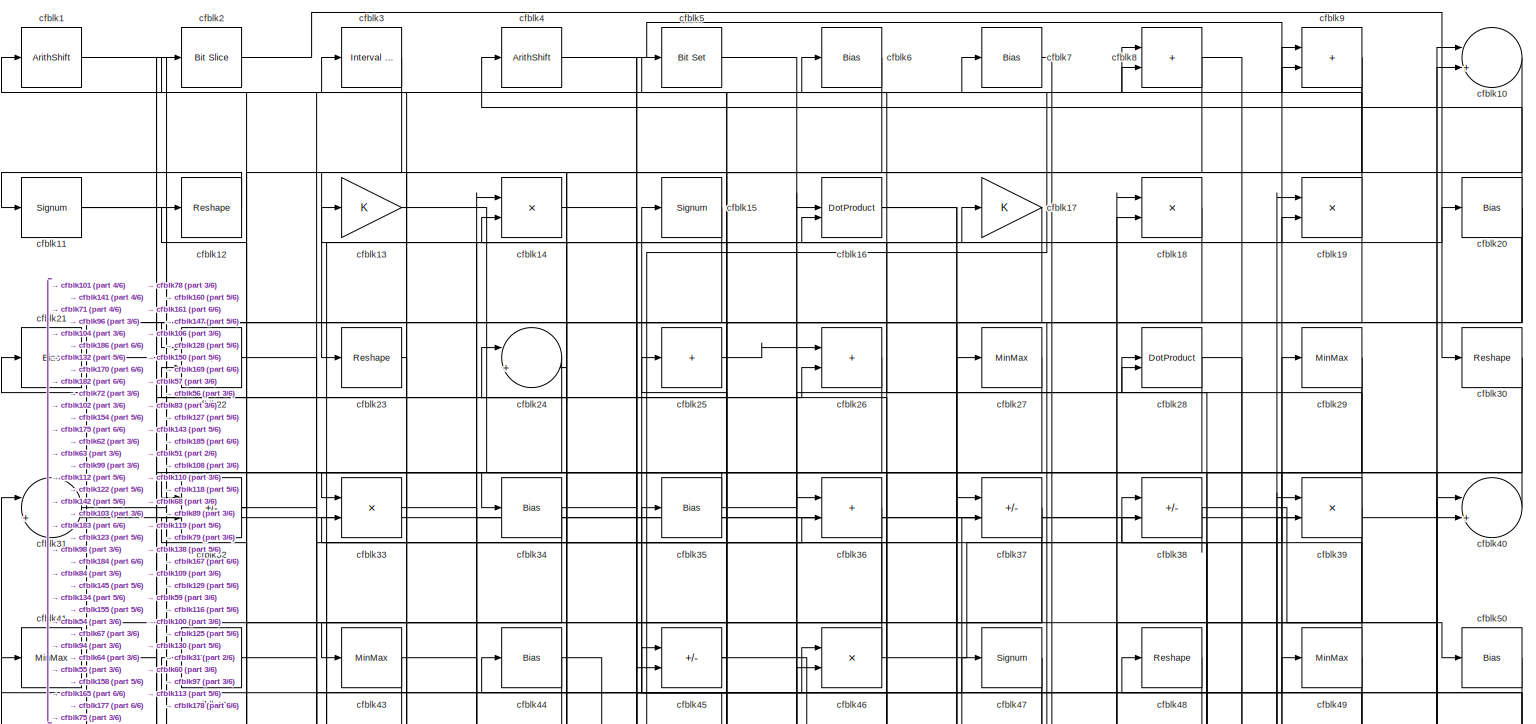
[diagram: root canvas - part 1/6, full width, top band]
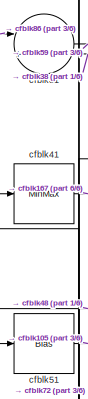
[diagram: root canvas - part 2/6, top left region]
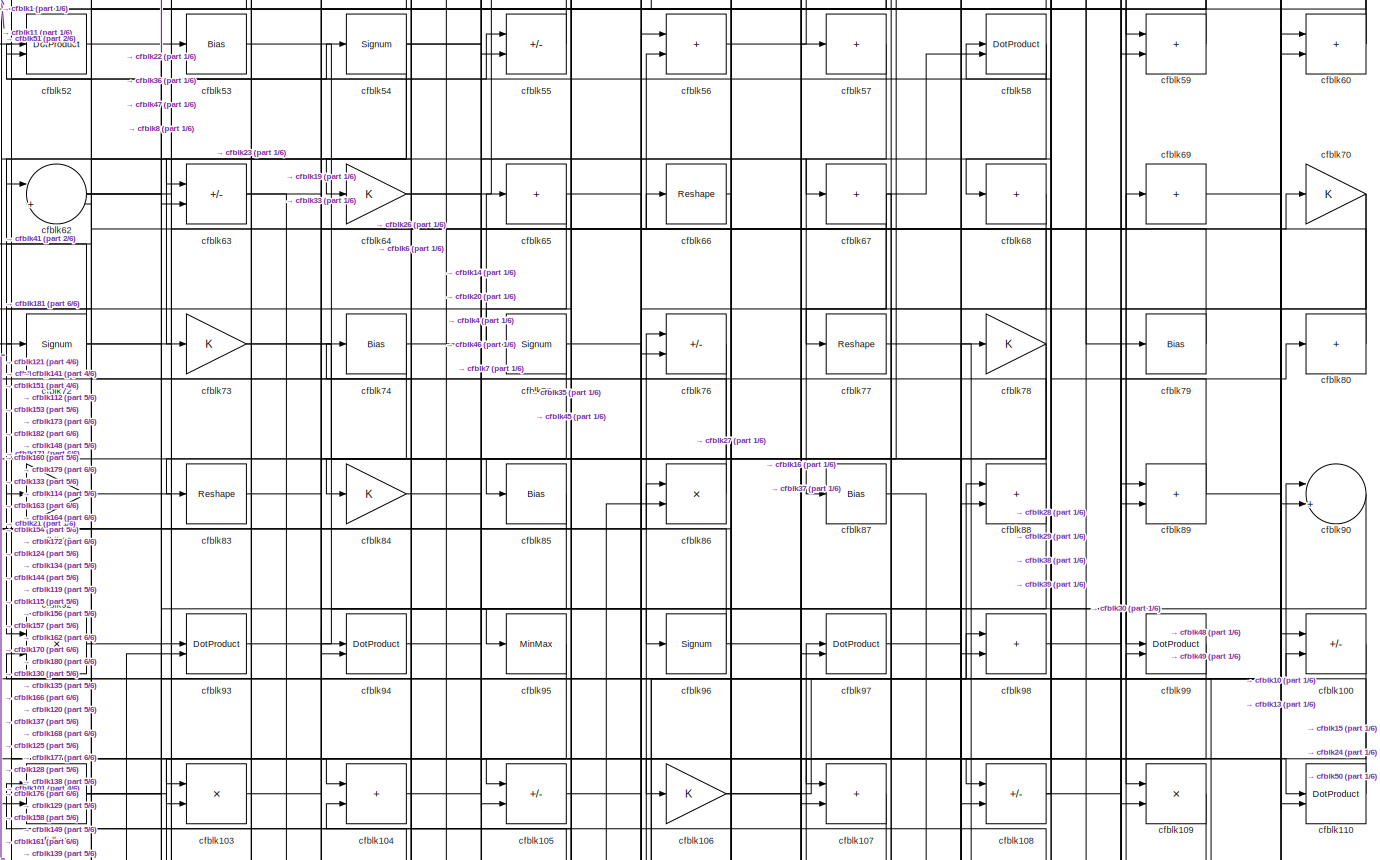
[diagram: root canvas - part 3/6, full width, middle band]
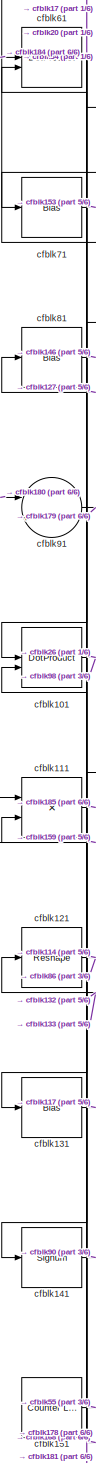
[diagram: root canvas - part 4/6, middle left region]
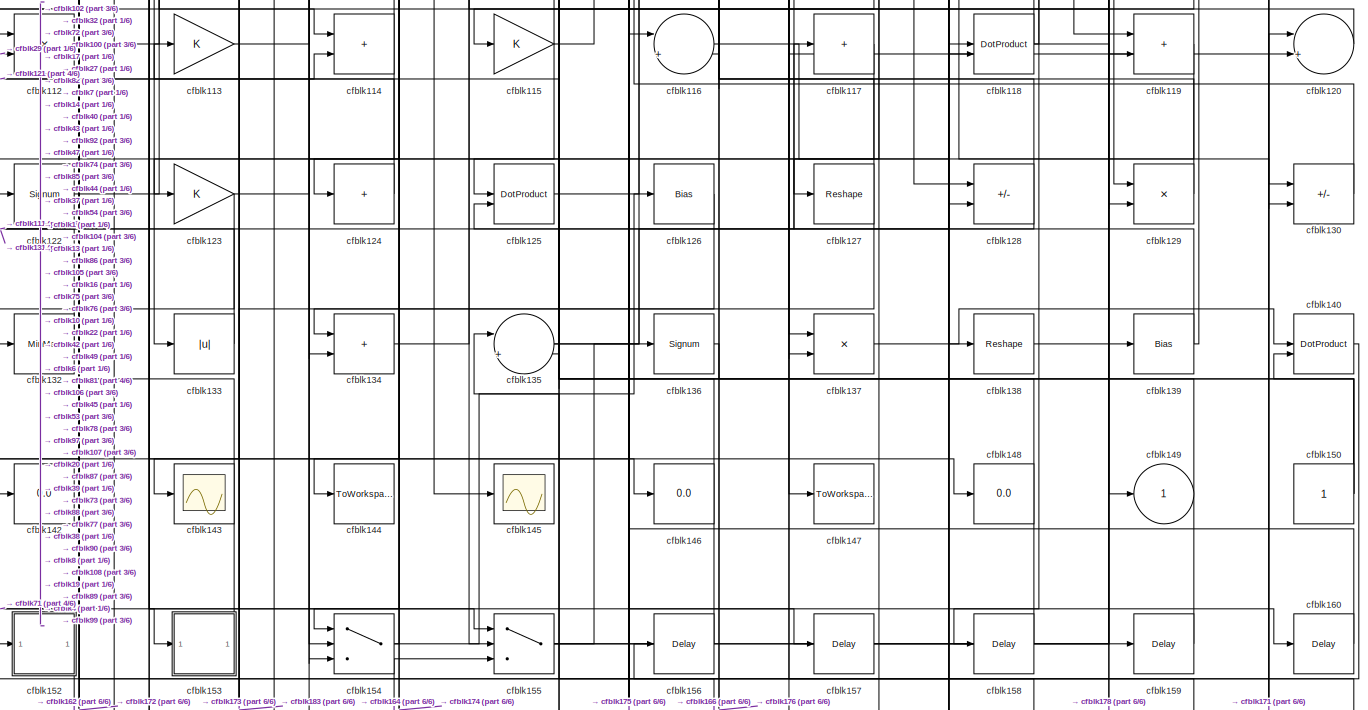
[diagram: root canvas - part 5/6, full width, bottom band]
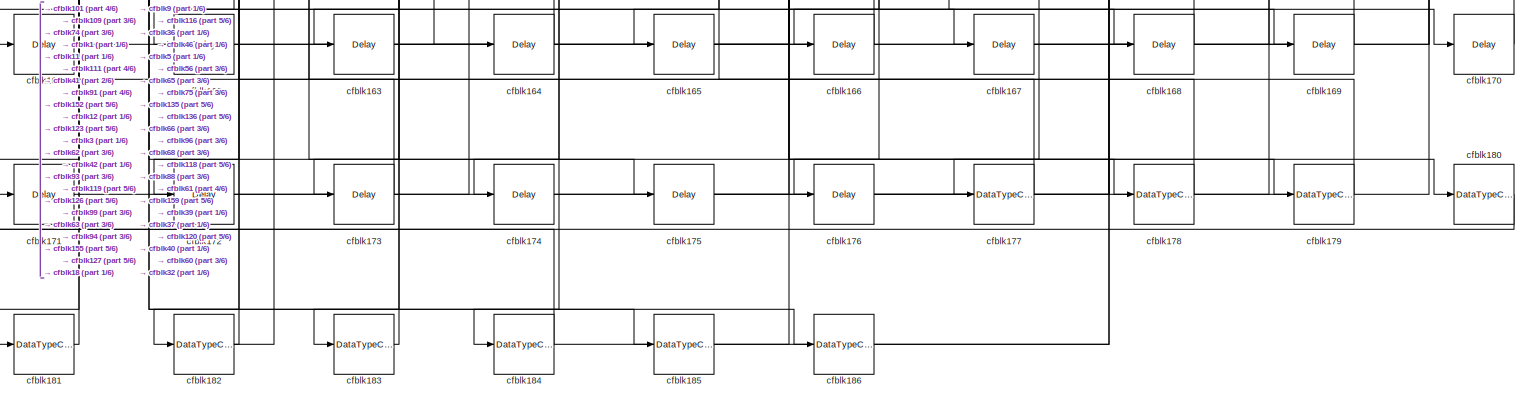
[diagram: root canvas - part 6/6, full width, bottom band]
MODEL slx_6ab288bbb175
KIND model
CONFIG AbsTol = auto
CONFIG EnableMultiTasking = off
CONFIG FixedStep = auto
CONFIG MaxStep = auto
CONFIG MinStep = auto
CONFIG RelTol = 1e-3
CONFIG SampleTimeConstraint = Unconstrained
CONFIG SolverName = VariableStepAuto
CONFIG StartTime = 0.0
CONFIG StopTime = 10.0
BLOCK [ArithShift] cfblk1
  BitShiftNumber = 8
  InputPortMap = u0
BLOCK [Sum] cfblk10
  Inputs = |++
BLOCK [Sum] cfblk100
  IconShape = rectangular
  Inputs = +-
BLOCK [DotProduct] cfblk101
  OutDataTypeStr = Inherit: Inherit via internal rule
BLOCK [Sum] cfblk102
  IconShape = rectangular
BLOCK [Product] cfblk103
  Inputs = */
  RndMeth = Zero
  SaturateOnIntegerOverflow = on
BLOCK [Sum] cfblk104
  IconShape = rectangular
BLOCK [Sum] cfblk105
  IconShape = rectangular
  Inputs = +-
BLOCK [Gain] cfblk106
BLOCK [Sum] cfblk107
  IconShape = rectangular
BLOCK [Sum] cfblk108
  IconShape = rectangular
  Inputs = +-
BLOCK [Product] cfblk109
  Inputs = */
  RndMeth = Zero
  SaturateOnIntegerOverflow = on
BLOCK [Signum] cfblk11
BLOCK [DotProduct] cfblk110
  OutDataTypeStr = Inherit: Inherit via internal rule
BLOCK [Product] cfblk111
  Inputs = */
  RndMeth = Zero
  SaturateOnIntegerOverflow = on
BLOCK [Product] cfblk112
  Inputs = */
  RndMeth = Zero
  SaturateOnIntegerOverflow = on
BLOCK [Gain] cfblk113
BLOCK [Sum] cfblk114
  IconShape = rectangular
BLOCK [Gain] cfblk115
BLOCK [Sum] cfblk116
  Inputs = |++
BLOCK [Sum] cfblk117
  IconShape = rectangular
  Inputs = +
BLOCK [DotProduct] cfblk118
  OutDataTypeStr = Inherit: Inherit via internal rule
BLOCK [Sum] cfblk119
  IconShape = rectangular
BLOCK [Reshape] cfblk12
BLOCK [Sum] cfblk120
  Inputs = |++
BLOCK [Reshape] cfblk121
BLOCK [Signum] cfblk122
BLOCK [Gain] cfblk123
BLOCK [Sum] cfblk124
  IconShape = rectangular
  Inputs = +
BLOCK [DotProduct] cfblk125
  OutDataTypeStr = Inherit: Inherit via internal rule
BLOCK [Bias] cfblk126
  Bias = 0.0
  SaturateOnIntegerOverflow = off
BLOCK [Reshape] cfblk127
BLOCK [Sum] cfblk128
  IconShape = rectangular
  Inputs = +-
BLOCK [Product] cfblk129
  Inputs = */
  RndMeth = Zero
  SaturateOnIntegerOverflow = on
BLOCK [Gain] cfblk13
BLOCK [Sum] cfblk130
  IconShape = rectangular
  Inputs = +-
BLOCK [Bias] cfblk131
  Bias = 0.0
  SaturateOnIntegerOverflow = off
BLOCK [MinMax] cfblk132
BLOCK [Abs] cfblk133
  SaturateOnIntegerOverflow = off
BLOCK [Sum] cfblk134
  IconShape = rectangular
BLOCK [Sum] cfblk135
  Inputs = |++
BLOCK [Signum] cfblk136
BLOCK [Product] cfblk137
  Inputs = */
  RndMeth = Zero
  SaturateOnIntegerOverflow = on
BLOCK [Reshape] cfblk138
BLOCK [Bias] cfblk139
  Bias = 0.0
  SaturateOnIntegerOverflow = off
BLOCK [Product] cfblk14
  Inputs = */
  RndMeth = Zero
  SaturateOnIntegerOverflow = on
BLOCK [DotProduct] cfblk140
  OutDataTypeStr = Inherit: Inherit via internal rule
BLOCK [Signum] cfblk141
BLOCK [Display] cfblk142
  Decimation = 1
BLOCK [Scope] cfblk143
  Floating = off
  NumInputPorts = 1
  ScopeSpecificationString = Simulink.scopes.TimeScopeBlockCfg('CurrentConfiguration', extmgr.ConfigurationSet(extmgr.Configuration('Core','General UI',true),extmgr.Configuration('Core','Source UI',true),extmgr.Configuration('Sources','WiredSimulink',true,'DataLoggingVariableName','ScopeData2','DataLoggingSaveFormat','Array','DataLoggingLimitDataPoints',true,'DataLoggingDecimation','1'),extmgr.Configuration('Visuals','Time Do...<+868ch>
BLOCK [ToWorkspace] cfblk144
  MaxDataPoints = inf
  SampleTime = -1
  SaveFormat = Timeseries
  VariableName = simout
BLOCK [Scope] cfblk145
  Floating = off
  NumInputPorts = 1
  ScopeSpecificationString = Simulink.scopes.TimeScopeBlockCfg('CurrentConfiguration', extmgr.ConfigurationSet(extmgr.Configuration('Core','General UI',true),extmgr.Configuration('Core','Source UI',true),extmgr.Configuration('Sources','WiredSimulink',true,'DataLoggingVariableName','ScopeData2','DataLoggingSaveFormat','Array','DataLoggingLimitDataPoints',true,'DataLoggingDecimation','1'),extmgr.Configuration('Visuals','Time Do...<+868ch>
BLOCK [Display] cfblk146
  Decimation = 1
BLOCK [ToWorkspace] cfblk147
  MaxDataPoints = inf
  SampleTime = -1
  SaveFormat = Timeseries
  VariableName = simout
BLOCK [Display] cfblk148
  Decimation = 1
BLOCK [Outport] cfblk149
  VectorParamsAs1DForOutWhenUnconnected = off
BLOCK [Signum] cfblk15
BLOCK [Constant] cfblk150
  SampleTime = -1
BLOCK [Reference] cfblk151  REF=hdlsllib/Sources/Counter
Limited
  SourceBlock = hdlsllib/Sources/Counter\nLimited
  SourceType = Counter Limited
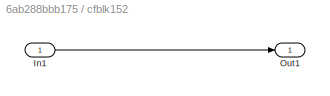
BLOCK [SubSystem] cfblk152
  LibrarySourceBlock = hdlsllib/Ports &\nSubsystems/Subsystem
BLOCK [Inport] cfblk152/In1
BLOCK [Outport] cfblk152/Out1
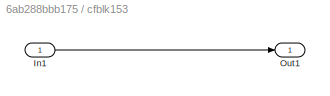
BLOCK [SubSystem] cfblk153
  LibrarySourceBlock = hdlsllib/Ports &\nSubsystems/Subsystem
BLOCK [Inport] cfblk153/In1
BLOCK [Outport] cfblk153/Out1
BLOCK [Switch] cfblk154
  InputSameDT = off
  SaturateOnIntegerOverflow = off
BLOCK [Switch] cfblk155
  InputSameDT = off
  SaturateOnIntegerOverflow = off
BLOCK [Delay] cfblk156
  InputPortMap = u0
  SampleTime = 1
BLOCK [Delay] cfblk157
  InputPortMap = u0
  SampleTime = 1
BLOCK [Delay] cfblk158
  InputPortMap = u0
  SampleTime = 1
BLOCK [Delay] cfblk159
  InputPortMap = u0
  SampleTime = 1
BLOCK [DotProduct] cfblk16
  OutDataTypeStr = Inherit: Inherit via internal rule
BLOCK [Delay] cfblk160
  InputPortMap = u0
  SampleTime = 1
BLOCK [Delay] cfblk161
  InputPortMap = u0
  SampleTime = 1
BLOCK [Delay] cfblk162
  InputPortMap = u0
  SampleTime = 1
BLOCK [Delay] cfblk163
  InputPortMap = u0
  SampleTime = 1
BLOCK [Delay] cfblk164
  InputPortMap = u0
  SampleTime = 1
BLOCK [Delay] cfblk165
  InputPortMap = u0
  SampleTime = 1
BLOCK [Delay] cfblk166
  InputPortMap = u0
  SampleTime = 1
BLOCK [Delay] cfblk167
  InputPortMap = u0
  SampleTime = 1
BLOCK [Delay] cfblk168
  InputPortMap = u0
  SampleTime = 1
BLOCK [Delay] cfblk169
  InputPortMap = u0
  SampleTime = 1
BLOCK [Gain] cfblk17
BLOCK [Delay] cfblk170
  InputPortMap = u0
  SampleTime = 1
BLOCK [Delay] cfblk171
  InputPortMap = u0
  SampleTime = 1
BLOCK [Delay] cfblk172
  InputPortMap = u0
  SampleTime = 1
BLOCK [Delay] cfblk173
  InputPortMap = u0
  SampleTime = 1
BLOCK [Delay] cfblk174
  InputPortMap = u0
  SampleTime = 1
BLOCK [Delay] cfblk175
  InputPortMap = u0
  SampleTime = 1
BLOCK [Delay] cfblk176
  InputPortMap = u0
  SampleTime = 1
BLOCK [DataTypeConversion] cfblk177
  OutDataTypeStr = boolean
  RndMeth = Floor
  SaturateOnIntegerOverflow = off
BLOCK [DataTypeConversion] cfblk178
  RndMeth = Floor
  SaturateOnIntegerOverflow = off
BLOCK [DataTypeConversion] cfblk179
  OutDataTypeStr = uint8
  RndMeth = Floor
  SaturateOnIntegerOverflow = off
BLOCK [Product] cfblk18
  Inputs = */
  RndMeth = Zero
  SaturateOnIntegerOverflow = on
BLOCK [DataTypeConversion] cfblk180
  OutDataTypeStr = uint8
  RndMeth = Floor
  SaturateOnIntegerOverflow = off
BLOCK [DataTypeConversion] cfblk181
  OutDataTypeStr = uint8
  RndMeth = Floor
  SaturateOnIntegerOverflow = off
BLOCK [DataTypeConversion] cfblk182
  RndMeth = Floor
  SaturateOnIntegerOverflow = off
BLOCK [DataTypeConversion] cfblk183
  OutDataTypeStr = uint8
  RndMeth = Floor
  SaturateOnIntegerOverflow = off
BLOCK [DataTypeConversion] cfblk184
  RndMeth = Floor
  SaturateOnIntegerOverflow = off
BLOCK [DataTypeConversion] cfblk185
  OutDataTypeStr = uint8
  RndMeth = Floor
  SaturateOnIntegerOverflow = off
BLOCK [DataTypeConversion] cfblk186
  OutDataTypeStr = uint8
  RndMeth = Floor
  SaturateOnIntegerOverflow = off
BLOCK [Product] cfblk19
  Inputs = */
  RndMeth = Zero
  SaturateOnIntegerOverflow = on
BLOCK [Reference] cfblk2  REF=hdlsllib/Logic and Bit
Operations/Bit Slice
  SourceBlock = hdlsllib/Logic and Bit\nOperations/Bit Slice
  SourceType = Bit Slice
BLOCK [Bias] cfblk20
  Bias = 0.0
  SaturateOnIntegerOverflow = off
BLOCK [Bias] cfblk21
  Bias = 0.0
  SaturateOnIntegerOverflow = off
BLOCK [Sum] cfblk22
  IconShape = rectangular
  Inputs = +-
BLOCK [Reshape] cfblk23
BLOCK [Sum] cfblk24
  Inputs = |++
BLOCK [Sum] cfblk25
  IconShape = rectangular
  Inputs = +
BLOCK [Sum] cfblk26
  IconShape = rectangular
BLOCK [MinMax] cfblk27
BLOCK [DotProduct] cfblk28
  OutDataTypeStr = Inherit: Inherit via internal rule
BLOCK [MinMax] cfblk29
BLOCK [Reference] cfblk3  REF=hdlsllib/Logic and Bit
Operations/Interval Test
  SourceBlock = hdlsllib/Logic and Bit\nOperations/Interval Test
  SourceType = Interval Test
BLOCK [Reshape] cfblk30
BLOCK [Sum] cfblk31
  Inputs = |++
BLOCK [Sum] cfblk32
  IconShape = rectangular
  Inputs = +-
BLOCK [Product] cfblk33
  Inputs = */
  RndMeth = Zero
  SaturateOnIntegerOverflow = on
BLOCK [Bias] cfblk34
  Bias = 0.0
  SaturateOnIntegerOverflow = off
BLOCK [Bias] cfblk35
  Bias = 0.0
  SaturateOnIntegerOverflow = off
BLOCK [Sum] cfblk36
  IconShape = rectangular
BLOCK [Sum] cfblk37
  IconShape = rectangular
  Inputs = +-
BLOCK [Sum] cfblk38
  IconShape = rectangular
  Inputs = +-
BLOCK [Product] cfblk39
  Inputs = */
  RndMeth = Zero
  SaturateOnIntegerOverflow = on
BLOCK [ArithShift] cfblk4
  BitShiftNumber = 8
  InputPortMap = u0
BLOCK [Sum] cfblk40
  Inputs = |++
BLOCK [MinMax] cfblk41
BLOCK [Signum] cfblk42
BLOCK [MinMax] cfblk43
BLOCK [Bias] cfblk44
  Bias = 0.0
  SaturateOnIntegerOverflow = off
BLOCK [Sum] cfblk45
  IconShape = rectangular
  Inputs = +-
BLOCK [Product] cfblk46
  Inputs = */
  RndMeth = Zero
  SaturateOnIntegerOverflow = on
BLOCK [Signum] cfblk47
BLOCK [Reshape] cfblk48
BLOCK [MinMax] cfblk49
BLOCK [Reference] cfblk5  REF=simulink/Logic and Bit
Operations/Bit Set
  LibrarySourceBlock = hdlsllib/Logic and Bit\nOperations/Bit Set
  SourceBlock = simulink/Logic and Bit\nOperations/Bit Set
  SourceType = Bit Set
BLOCK [Bias] cfblk50
  Bias = 0.0
  SaturateOnIntegerOverflow = off
BLOCK [Bias] cfblk51
  Bias = 0.0
  SaturateOnIntegerOverflow = off
BLOCK [DotProduct] cfblk52
  OutDataTypeStr = Inherit: Inherit via internal rule
BLOCK [Bias] cfblk53
  Bias = 0.0
  SaturateOnIntegerOverflow = off
BLOCK [Signum] cfblk54
BLOCK [Sum] cfblk55
  IconShape = rectangular
  Inputs = +-
BLOCK [Sum] cfblk56
  IconShape = rectangular
BLOCK [Sum] cfblk57
  IconShape = rectangular
  Inputs = +
BLOCK [DotProduct] cfblk58
  OutDataTypeStr = Inherit: Inherit via internal rule
BLOCK [Sum] cfblk59
  IconShape = rectangular
BLOCK [Bias] cfblk6
  Bias = 0.0
  SaturateOnIntegerOverflow = off
BLOCK [Sum] cfblk60
  IconShape = rectangular
BLOCK [DotProduct] cfblk61
  OutDataTypeStr = Inherit: Inherit via internal rule
BLOCK [Sum] cfblk62
  Inputs = |++
BLOCK [Sum] cfblk63
  IconShape = rectangular
  Inputs = +-
BLOCK [Gain] cfblk64
BLOCK [Sum] cfblk65
  IconShape = rectangular
  Inputs = +
BLOCK [Reshape] cfblk66
BLOCK [Sum] cfblk67
  IconShape = rectangular
  Inputs = +
BLOCK [Sum] cfblk68
  IconShape = rectangular
  Inputs = +
BLOCK [Sum] cfblk69
  IconShape = rectangular
  Inputs = +
BLOCK [Bias] cfblk7
  Bias = 0.0
  SaturateOnIntegerOverflow = off
BLOCK [Gain] cfblk70
BLOCK [Bias] cfblk71
  Bias = 0.0
  SaturateOnIntegerOverflow = off
BLOCK [Signum] cfblk72
BLOCK [Gain] cfblk73
BLOCK [Bias] cfblk74
  Bias = 0.0
  SaturateOnIntegerOverflow = off
BLOCK [Signum] cfblk75
BLOCK [Sum] cfblk76
  IconShape = rectangular
  Inputs = +-
BLOCK [Reshape] cfblk77
BLOCK [Gain] cfblk78
BLOCK [Bias] cfblk79
  Bias = 0.0
  SaturateOnIntegerOverflow = off
BLOCK [Sum] cfblk8
  IconShape = rectangular
BLOCK [Sum] cfblk80
  IconShape = rectangular
  Inputs = +
BLOCK [Bias] cfblk81
  Bias = 0.0
  SaturateOnIntegerOverflow = off
BLOCK [Gain] cfblk82
BLOCK [Reshape] cfblk83
BLOCK [Gain] cfblk84
BLOCK [Bias] cfblk85
  Bias = 0.0
  SaturateOnIntegerOverflow = off
BLOCK [Product] cfblk86
  Inputs = */
  RndMeth = Zero
  SaturateOnIntegerOverflow = on
BLOCK [Bias] cfblk87
  Bias = 0.0
  SaturateOnIntegerOverflow = off
BLOCK [Sum] cfblk88
  IconShape = rectangular
BLOCK [Sum] cfblk89
  IconShape = rectangular
BLOCK [Sum] cfblk9
  IconShape = rectangular
BLOCK [Sum] cfblk90
  Inputs = |++
BLOCK [Sum] cfblk91
  Inputs = |++
BLOCK [Product] cfblk92
  Inputs = */
  RndMeth = Zero
  SaturateOnIntegerOverflow = on
BLOCK [DotProduct] cfblk93
  OutDataTypeStr = Inherit: Inherit via internal rule
BLOCK [DotProduct] cfblk94
  OutDataTypeStr = Inherit: Inherit via internal rule
BLOCK [MinMax] cfblk95
BLOCK [Signum] cfblk96
BLOCK [DotProduct] cfblk97
  OutDataTypeStr = Inherit: Inherit via internal rule
BLOCK [Sum] cfblk98
  IconShape = rectangular
BLOCK [DotProduct] cfblk99
  OutDataTypeStr = Inherit: Inherit via internal rule
LINE cfblk100:1 -> cfblk133:1
NET cfblk101:1 -> cfblk26:2, cfblk98:1
NET cfblk102:1 -> cfblk100:2, cfblk103:2, cfblk36:2
LINE cfblk103:1 -> cfblk69:1
LINE cfblk104:1 -> cfblk70:1
LINE cfblk105:1 -> cfblk157:1
NET cfblk106:1 -> cfblk10:2, cfblk120:2
LINE cfblk107:1 -> cfblk125:1
NET cfblk108:1 -> cfblk149:1, cfblk58:1
LINE cfblk109:1 -> cfblk161:1
LINE cfblk10:1 -> cfblk23:1
LINE cfblk110:1 -> cfblk38:1
LINE cfblk111:1 -> cfblk185:1
LINE cfblk112:1 -> cfblk17:1
LINE cfblk113:1 -> cfblk14:1
NET cfblk114:1 -> cfblk152:1, cfblk92:2
NET cfblk115:1 -> cfblk134:2, cfblk82:1, cfblk86:2
LINE cfblk116:1 -> cfblk128:2
LINE cfblk117:1 -> cfblk135:2
NET cfblk118:1 -> cfblk130:2, cfblk38:2, cfblk44:1
LINE cfblk119:1 -> cfblk173:1
NET cfblk11:1 -> cfblk169:1, cfblk57:1
LINE cfblk120:1 -> cfblk115:1
NET cfblk121:1 -> cfblk114:2, cfblk86:1
LINE cfblk122:1 -> cfblk27:1
NET cfblk123:1 -> cfblk172:1, cfblk40:2
LINE cfblk124:1 -> cfblk113:1
LINE cfblk125:1 -> cfblk10:1
LINE cfblk126:1 -> cfblk183:1
NET cfblk127:1 -> cfblk174:1, cfblk81:1
NET cfblk128:1 -> cfblk125:2, cfblk42:1
LINE cfblk129:1 -> cfblk22:2
LINE cfblk12:1 -> cfblk11:1
LINE cfblk130:1 -> cfblk76:1
LINE cfblk131:1 -> cfblk117:1
LINE cfblk132:1 -> cfblk111:2
LINE cfblk133:1 -> cfblk121:1
LINE cfblk134:1 -> cfblk49:1
NET cfblk135:1 -> cfblk78:1, cfblk88:1
LINE cfblk136:1 -> cfblk176:1
LINE cfblk137:1 -> cfblk140:1
LINE cfblk138:1 -> cfblk19:1
NET cfblk139:1 -> cfblk97:1, cfblk99:2
LINE cfblk13:1 -> cfblk100:1
LINE cfblk140:1 -> cfblk156:1
LINE cfblk141:1 -> cfblk90:1
LINE cfblk14:1 -> cfblk67:1
NET cfblk150:1 -> cfblk13:1, cfblk140:2, cfblk6:1
LINE cfblk151:1 -> cfblk55:1
LINE cfblk152/In1:1 -> cfblk152/Out1:1
LINE cfblk152:1 -> cfblk162:1
LINE cfblk153/In1:1 -> cfblk153/Out1:1
LINE cfblk153:1 -> cfblk102:1
NET cfblk154:1 -> cfblk126:1, cfblk74:1
NET cfblk155:1 -> cfblk136:1, cfblk139:1, cfblk39:2
LINE cfblk156:1 -> cfblk104:2
LINE cfblk157:1 -> cfblk89:1
LINE cfblk158:1 -> cfblk1:1
LINE cfblk159:1 -> cfblk111:1
LINE cfblk15:1 -> cfblk55:2
LINE cfblk160:1 -> cfblk16:1
LINE cfblk161:1 -> cfblk36:1
LINE cfblk162:1 -> cfblk56:1
LINE cfblk163:1 -> cfblk60:1
LINE cfblk164:1 -> cfblk155:3
LINE cfblk165:1 -> cfblk40:1
LINE cfblk166:1 -> cfblk135:1
LINE cfblk167:1 -> cfblk39:1
LINE cfblk168:1 -> cfblk61:2
LINE cfblk169:1 -> cfblk37:1
NET cfblk16:1 -> cfblk109:2, cfblk50:1
LINE cfblk170:1 -> cfblk32:2
LINE cfblk171:1 -> cfblk120:1
LINE cfblk172:1 -> cfblk94:1
LINE cfblk173:1 -> cfblk62:1
LINE cfblk174:1 -> cfblk118:1
LINE cfblk175:1 -> cfblk116:1
LINE cfblk176:1 -> cfblk88:2
LINE cfblk177:1 -> cfblk5:1
NET cfblk178:1 -> cfblk101:2, cfblk159:1
LINE cfblk179:1 -> cfblk93:1
LINE cfblk17:1 -> cfblk71:1
LINE cfblk180:1 -> cfblk91:1
LINE cfblk181:1 -> cfblk91:2
NET cfblk182:1 -> cfblk12:1, cfblk93:2
LINE cfblk183:1 -> cfblk3:1
NET cfblk184:1 -> cfblk46:2, cfblk61:1
LINE cfblk185:1 -> cfblk18:1
LINE cfblk186:1 -> cfblk18:2
LINE cfblk18:1 -> cfblk184:1
NET cfblk19:1 -> cfblk75:1, cfblk9:2
NET cfblk1:1 -> cfblk104:1, cfblk186:1, cfblk63:1
NET cfblk20:1 -> cfblk101:1, cfblk127:1, cfblk22:1, cfblk4:1
LINE cfblk21:1 -> cfblk34:1
LINE cfblk22:1 -> cfblk99:1
LINE cfblk23:1 -> cfblk103:1
LINE cfblk24:1 -> cfblk72:1
LINE cfblk25:1 -> cfblk26:1
LINE cfblk26:1 -> cfblk64:1
LINE cfblk27:1 -> cfblk106:1
NET cfblk28:1 -> cfblk45:2, cfblk79:1
NET cfblk29:1 -> cfblk108:1, cfblk112:2
LINE cfblk2:1 -> cfblk30:1
NET cfblk30:1 -> cfblk109:1, cfblk63:2
LINE cfblk31:1 -> cfblk59:1
NET cfblk32:1 -> cfblk154:2, cfblk2:1
LINE cfblk33:1 -> cfblk98:2
NET cfblk34:1 -> cfblk141:1, cfblk9:1
NET cfblk35:1 -> cfblk28:1, cfblk33:1
LINE cfblk36:1 -> cfblk43:1
NET cfblk37:1 -> cfblk132:1, cfblk155:2
NET cfblk38:1 -> cfblk130:1, cfblk31:2
NET cfblk39:1 -> cfblk118:2, cfblk16:2, cfblk68:1
LINE cfblk3:1 -> cfblk182:1
LINE cfblk40:1 -> cfblk32:1
LINE cfblk41:1 -> cfblk167:1
LINE cfblk42:1 -> cfblk175:1
NET cfblk43:1 -> cfblk142:1, cfblk155:1
NET cfblk44:1 -> cfblk122:1, cfblk145:1
NET cfblk45:1 -> cfblk147:1, cfblk25:1
NET cfblk46:1 -> cfblk14:2, cfblk29:1
NET cfblk47:1 -> cfblk154:1, cfblk83:1
LINE cfblk48:1 -> cfblk51:1
NET cfblk49:1 -> cfblk116:2, cfblk33:2, cfblk94:2
NET cfblk4:1 -> cfblk129:1, cfblk59:2, cfblk8:2
LINE cfblk50:1 -> cfblk97:2
LINE cfblk51:1 -> cfblk105:1
LINE cfblk52:1 -> cfblk53:1
LINE cfblk53:1 -> cfblk137:1
NET cfblk54:1 -> cfblk112:1, cfblk119:2, cfblk46:1, cfblk73:1
LINE cfblk55:1 -> cfblk35:1
LINE cfblk56:1 -> cfblk37:2
LINE cfblk57:1 -> cfblk77:1
NET cfblk58:1 -> cfblk52:2, cfblk92:1
LINE cfblk59:1 -> cfblk48:1
LINE cfblk5:1 -> cfblk178:1
NET cfblk60:1 -> cfblk15:1, cfblk24:1
LINE cfblk61:1 -> cfblk131:1
NET cfblk62:1 -> cfblk47:1, cfblk54:1, cfblk8:1
NET cfblk63:1 -> cfblk110:1, cfblk164:1
NET cfblk64:1 -> cfblk110:2, cfblk7:1
NET cfblk65:1 -> cfblk170:1, cfblk181:1
LINE cfblk66:1 -> cfblk166:1
NET cfblk67:1 -> cfblk107:1, cfblk58:2, cfblk76:2, cfblk87:1
LINE cfblk68:1 -> cfblk177:1
LINE cfblk69:1 -> cfblk90:2
LINE cfblk6:1 -> cfblk84:1
NET cfblk70:1 -> cfblk107:2, cfblk89:2
LINE cfblk71:1 -> cfblk153:1
NET cfblk72:1 -> cfblk148:1, cfblk41:1, cfblk66:1
NET cfblk73:1 -> cfblk138:1, cfblk95:1
NET cfblk74:1 -> cfblk171:1, cfblk65:1
NET cfblk75:1 -> cfblk154:3, cfblk180:1
LINE cfblk76:1 -> cfblk144:1
LINE cfblk77:1 -> cfblk129:2
NET cfblk78:1 -> cfblk137:2, cfblk45:1, cfblk85:1
LINE cfblk79:1 -> cfblk56:2
LINE cfblk7:1 -> cfblk143:1
LINE cfblk80:1 -> cfblk52:1
LINE cfblk81:1 -> cfblk146:1
LINE cfblk82:1 -> cfblk114:1
LINE cfblk83:1 -> cfblk19:2
LINE cfblk84:1 -> cfblk105:2
LINE cfblk85:1 -> cfblk124:1
LINE cfblk86:1 -> cfblk31:1
LINE cfblk87:1 -> cfblk128:1
NET cfblk88:1 -> cfblk134:1, cfblk62:2
NET cfblk89:1 -> cfblk28:2, cfblk60:2
NET cfblk8:1 -> cfblk119:1, cfblk123:1
LINE cfblk90:1 -> cfblk158:1
LINE cfblk91:1 -> cfblk179:1
LINE cfblk92:1 -> cfblk160:1
LINE cfblk93:1 -> cfblk96:1
LINE cfblk94:1 -> cfblk20:1
LINE cfblk95:1 -> cfblk102:2
NET cfblk96:1 -> cfblk168:1, cfblk21:1
LINE cfblk97:1 -> cfblk108:2
LINE cfblk98:1 -> cfblk80:1
LINE cfblk99:1 -> cfblk163:1
NET cfblk9:1 -> cfblk165:1, cfblk24:2
note: NET lines group one-source signal fan-out (src -> all destinations, sorted); 1:1 wires keep LINE
